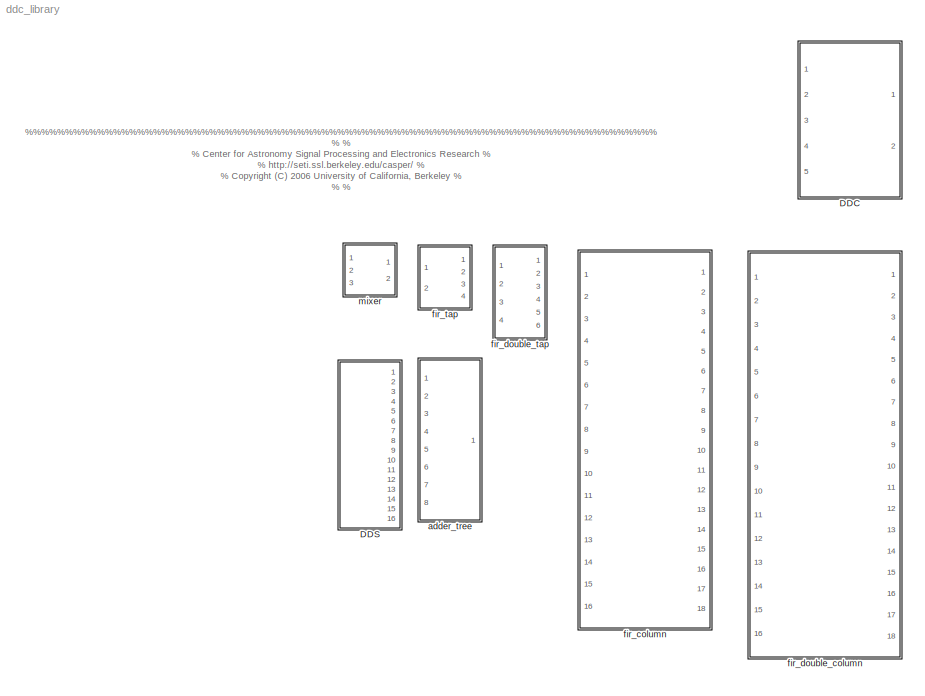
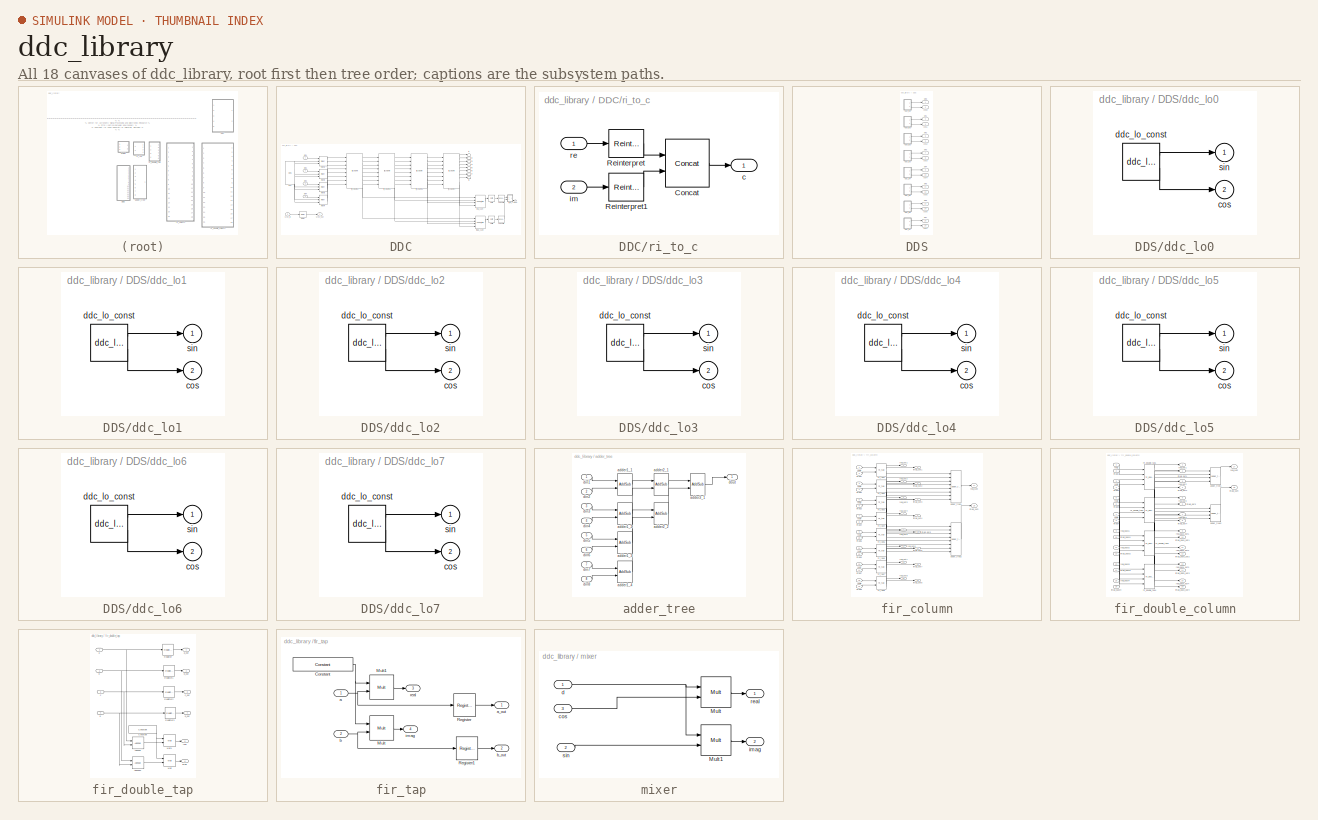
[diagram: thumbnail index - all 18 canvases of the model, root first then tree order]
MODEL ddc_library
KIND library
BLOCK [SubSystem] DDC
  MaskCallbackString = ||||||||
  MaskDescription = Decimating digital downconverter with parameterized LO and LPF coefficients.
  MaskEnableString = on,on,on,on,on,on,on,on,on
  MaskHelp = eval('xlWeb([getenv(''MLIB_ROOT''), ''<path>''])')
  MaskIconFrame = on
  MaskIconOpaque = on
  MaskIconRotate = none
  MaskIconUnits = autoscale
  MaskInitialization = ddc_mask;
  MaskPromptString = Frequency Divisions (M)|LO Frequency (1/M*2pi)|Inputs|LO BitWidth|FIR coefficients|Bit Width Out|Quantization Behavior|Add Latency|Mult Latency
  MaskSelfModifiable = on
  MaskStyleString = edit,edit,edit,edit,edit,edit,popup(Truncate|Round  (unbiased: +/- Inf)|Round  (unbiased: Even Values)),edit,edit
  MaskTabNameString = ,,,,,,,,
  MaskToolTipString = on,on,on,on,on,on,on,on,on
  MaskTunableValueString = on,on,on,on,on,on,on,on,on
  MaskType = DDC
  MaskValueString = 16|3|4|18|[1,zeros(1,15)]|8|Round  (unbiased: +/- Inf)|2|3
  MaskVarAliasString = ,,,,,,,,
  MaskVariables = freq_div=@1;lo_freq=@2;num_inputs=@3;lo_bitwidth=@4;lpfir_coeff=@5;BitWidthOut=@6;quantization=&7;add_latency=@8;mult_latency=@9;
  MaskVisibilityString = on,on,on,on,on,on,on,on,on
  MinAlgLoopOccurrences = off
  Ports = [5, 2]
  RTWSystemCode = Auto
  TreatAsAtomicUnit = off
  UserData = DataTag0
  UserDataPersistent = on
BLOCK [Reference] DDC/Shift  REF=xbsIndex_r3/Shift
  Ports = [1, 1]
  SourceBlock = xbsIndex_r3/Shift
  SourceType = Xilinx Shift Block
  arith_type = Signed  (2's comp)
  bin_pt = 2
  dbl_ovrd = off
  en = off
  explicit_period = off
  latency = 0
  n_bits = 8
  overflow = Wrap
  period = 1
  precision = Full
  quantization = Truncate
  shift_bits = 1
  shift_dir = Left
  show_param = off
  xl_area = [0, 0, 0, 0, 0, 0, 0]
  xl_use_area = off
BLOCK [Reference] DDC/Shift1  REF=xbsIndex_r3/Shift
  Ports = [1, 1]
  SourceBlock = xbsIndex_r3/Shift
  SourceType = Xilinx Shift Block
  arith_type = Signed  (2's comp)
  bin_pt = 2
  dbl_ovrd = off
  en = off
  explicit_period = off
  latency = 0
  n_bits = 8
  overflow = Wrap
  period = 1
  precision = Full
  quantization = Truncate
  shift_bits = 1
  shift_dir = Left
  show_param = off
  xl_area = [0, 0, 0, 0, 0, 0, 0]
  xl_use_area = off
BLOCK [Reference] DDC/convert1  REF=xbsIndex_r3/Convert
  Ports = [1, 1]
  SourceBlock = xbsIndex_r3/Convert
  SourceType = Xilinx Converter Block
  arith_type = Signed  (2's comp)
  bin_pt = BitWidthOut - 1
  dbl_ovrd = off
  explicit_period = on
  inserted_by_tool = off
  latency = add_latency
  n_bits = BitWidthOut
  overflow = Saturate
  period = 1
  pipeline = on
  quantization = Round  (unbiased: +/- Inf)
  show_param = on
  xl_area = [0, 0, 0, 0, 0, 0, 0]
  xl_use_area = off
BLOCK [Reference] DDC/convert2  REF=xbsIndex_r3/Convert
  Ports = [1, 1]
  SourceBlock = xbsIndex_r3/Convert
  SourceType = Xilinx Converter Block
  arith_type = Signed  (2's comp)
  bin_pt = BitWidthOut - 1
  dbl_ovrd = off
  explicit_period = on
  inserted_by_tool = off
  latency = add_latency
  n_bits = BitWidthOut
  overflow = Saturate
  period = 1
  pipeline = on
  quantization = Round  (unbiased: +/- Inf)
  show_param = on
  xl_area = [0, 0, 0, 0, 0, 0, 0]
  xl_use_area = off
BLOCK [Reference] DDC/dds  REF=ddc_library/DDS  (lib defined in mdl_423f3fd48bb0)
  BitWidth = lo_bitwidth
  Ports = [0, 8]
  ShowPortLabels = on
  SourceBlock = ddc_library/DDS
  freq = lo_freq
  freq_div = freq_div
  latency = 2
  num_lo = num_inputs
BLOCK [Reference] DDC/delay  REF=xbsIndex_r3/Delay
  Ports = [1, 1]
  SourceBlock = xbsIndex_r3/Delay
  SourceType = Xilinx Delay Block
  accept_only_valid = off
  dbl_ovrd = off
  en = off
  explicit_period = off
  init_zero = on
  latency = mult_latency*2+ceil(log2(num_inputs))*add_latency+ceil(log2(num_fir_col))*add_latency+add_latency
  period = 1
  reg_retiming = off
  show_param = off
  xl_area = [0, 0, 0, 0, 0, 0, 0]
  xl_use_area = off
BLOCK [Inport] DDC/din1
  IconDisplay = Port number
  LatchInput = off
  Port = 1
BLOCK [Inport] DDC/din2
  IconDisplay = Port number
  LatchInput = off
  Port = 2
BLOCK [Inport] DDC/din3
  IconDisplay = Port number
  LatchInput = off
  Port = 3
BLOCK [Inport] DDC/din4
  IconDisplay = Port number
  LatchInput = off
  Port = 4
BLOCK [Outport] DDC/dout
  BusOutputAsStruct = off
  IconDisplay = Port number
BLOCK [Reference] DDC/fir_column1  REF=ddc_library/fir_column  (lib defined in mdl_423f3fd48bb0)
  Ports = [8, 10]
  ShowPortLabels = on
  SourceBlock = ddc_library/fir_column
  SourceType = fir_column
  add_latency = 1
  coeff = lpfir_coeff(4:-1:1)
  mult_latency = mult_latency
  num_inputs = num_inputs
BLOCK [Reference] DDC/fir_column2  REF=ddc_library/fir_column  (lib defined in mdl_423f3fd48bb0)
  Ports = [8, 10]
  ShowPortLabels = on
  SourceBlock = ddc_library/fir_column
  SourceType = fir_column
  add_latency = 1
  coeff = lpfir_coeff(8:-1:5)
  mult_latency = mult_latency
  num_inputs = num_inputs
BLOCK [Reference] DDC/fir_column3  REF=ddc_library/fir_column  (lib defined in mdl_423f3fd48bb0)
  Ports = [8, 10]
  ShowPortLabels = on
  SourceBlock = ddc_library/fir_column
  SourceType = fir_column
  add_latency = 1
  coeff = lpfir_coeff(12:-1:9)
  mult_latency = mult_latency
  num_inputs = num_inputs
BLOCK [Reference] DDC/fir_column4  REF=ddc_library/fir_column  (lib defined in mdl_423f3fd48bb0)
  Ports = [8, 10]
  ShowPortLabels = on
  SourceBlock = ddc_library/fir_column
  SourceType = fir_column
  add_latency = 1
  coeff = lpfir_coeff(16:-1:13)
  mult_latency = mult_latency
  num_inputs = num_inputs
BLOCK [Reference] DDC/imag_sum  REF=ddc_library/adder_tree  (lib defined in mdl_423f3fd48bb0)
  Ports = [4, 1]
  ShowPortLabels = on
  SourceBlock = ddc_library/adder_tree
  latency = 2
  num_inputs = 4
BLOCK [Reference] DDC/mixer1  REF=ddc_library/mixer  (lib defined in mdl_423f3fd48bb0)
  BitWidth = lo_bitwidth
  Ports = [3, 2]
  ShowPortLabels = on
  SourceBlock = ddc_library/mixer
  latency = mult_latency
BLOCK [Reference] DDC/mixer2  REF=ddc_library/mixer  (lib defined in mdl_423f3fd48bb0)
  BitWidth = lo_bitwidth
  Ports = [3, 2]
  ShowPortLabels = on
  SourceBlock = ddc_library/mixer
  latency = mult_latency
BLOCK [Reference] DDC/mixer3  REF=ddc_library/mixer  (lib defined in mdl_423f3fd48bb0)
  BitWidth = lo_bitwidth
  Ports = [3, 2]
  ShowPortLabels = on
  SourceBlock = ddc_library/mixer
  latency = mult_latency
BLOCK [Reference] DDC/mixer4  REF=ddc_library/mixer  (lib defined in mdl_423f3fd48bb0)
  BitWidth = lo_bitwidth
  Ports = [3, 2]
  ShowPortLabels = on
  SourceBlock = ddc_library/mixer
  latency = mult_latency
BLOCK [Reference] DDC/real_sum  REF=ddc_library/adder_tree  (lib defined in mdl_423f3fd48bb0)
  Ports = [4, 1]
  ShowPortLabels = on
  SourceBlock = ddc_library/adder_tree
  latency = 2
  num_inputs = 4
BLOCK [SubSystem] DDC/ri_to_c
  MinAlgLoopOccurrences = off
  Ports = [2, 1]
  RTWSystemCode = Auto
  TreatAsAtomicUnit = off
BLOCK [Reference] DDC/ri_to_c/Concat  REF=xbsIndex_r3/Concat
  Ports = [2, 1]
  SourceBlock = xbsIndex_r3/Concat
  SourceType = Xilinx Bus Concatenator
  dbl_ovrd = off
  explicit_period = off
  num_inputs = 2
  period = 1
BLOCK [Reference] DDC/ri_to_c/Reinterpret  REF=xbsIndex_r3/Reinterpret
  Ports = [1, 1]
  SourceBlock = xbsIndex_r3/Reinterpret
  SourceType = Xilinx Type Reinterpreting Block
  arith_type = Unsigned
  bin_pt = 0
  force_arith_type = on
  force_bin_pt = on
  force_valid = on
BLOCK [Reference] DDC/ri_to_c/Reinterpret1  REF=xbsIndex_r3/Reinterpret
  Ports = [1, 1]
  SourceBlock = xbsIndex_r3/Reinterpret
  SourceType = Xilinx Type Reinterpreting Block
  arith_type = Unsigned
  bin_pt = 0
  force_arith_type = on
  force_bin_pt = on
  force_valid = on
BLOCK [Outport] DDC/ri_to_c/c
  BusOutputAsStruct = off
  IconDisplay = Port number
BLOCK [Inport] DDC/ri_to_c/im
  IconDisplay = Port number
  LatchInput = off
  Port = 2
BLOCK [Inport] DDC/ri_to_c/re
  IconDisplay = Port number
  LatchInput = off
  Port = 1
BLOCK [Inport] DDC/sync_in
  IconDisplay = Port number
  LatchInput = off
  Port = 5
BLOCK [Outport] DDC/sync_out
  BusOutputAsStruct = off
  IconDisplay = Port number
  Port = 2
BLOCK [Terminator] DDC/t1
BLOCK [Terminator] DDC/t2
BLOCK [Terminator] DDC/t3
BLOCK [Terminator] DDC/t4
BLOCK [Terminator] DDC/t5
BLOCK [Terminator] DDC/t6
BLOCK [Terminator] DDC/t7
BLOCK [Terminator] DDC/t8
BLOCK [SubSystem] DDS
  MaskCallbackString = ||||
  MaskEnableString = on,on,on,on,on
  MaskIconFrame = on
  MaskIconOpaque = on
  MaskIconRotate = none
  MaskIconUnits = autoscale
  MaskInitialization = dds_mask;
  MaskPromptString = Frequency divisions (M)|Frequency (1/M*2pi)|Parallel LOs (N)|BitWidth|Latency
  MaskSelfModifiable = on
  MaskStyleString = edit,edit,edit,edit,edit
  MaskTabNameString = ,,,,
  MaskToolTipString = on,on,on,on,on
  MaskTunableValueString = on,on,on,on,on
  MaskValueString = 8|2|8|18|2
  MaskVarAliasString = ,,,,
  MaskVariables = freq_div=@1;freq=@2;num_lo=@3;BitWidth=@4;latency=@5;
  MaskVisibilityString = on,on,on,on,on
  MinAlgLoopOccurrences = off
  Ports = [0, 16]
  RTWSystemCode = Auto
  TreatAsAtomicUnit = off
BLOCK [Outport] DDS/cos0
  BusOutputAsStruct = off
  IconDisplay = Port number
  Port = 2
BLOCK [Outport] DDS/cos1
  BusOutputAsStruct = off
  IconDisplay = Port number
  Port = 4
BLOCK [Outport] DDS/cos2
  BusOutputAsStruct = off
  IconDisplay = Port number
  Port = 6
BLOCK [Outport] DDS/cos3
  BusOutputAsStruct = off
  IconDisplay = Port number
  Port = 8
BLOCK [Outport] DDS/cos4
  BusOutputAsStruct = off
  IconDisplay = Port number
  Port = 10
BLOCK [Outport] DDS/cos5
  BusOutputAsStruct = off
  IconDisplay = Port number
  Port = 12
BLOCK [Outport] DDS/cos6
  BusOutputAsStruct = off
  IconDisplay = Port number
  Port = 14
BLOCK [Outport] DDS/cos7
  BusOutputAsStruct = off
  IconDisplay = Port number
  Port = 16
BLOCK [SubSystem] DDS/ddc_lo0
  AttributesFormatString = %<BlockChoice>
  BlockChoice = ddc_lo_const
  MemberBlocks = ddc_lo_const,ddc_lo_osc
  MinAlgLoopOccurrences = off
  Ports = [0, 2]
  RTWSystemCode = Auto
  TemplateBlock = ddc_lo_lib/ddc_lo
  TreatAsAtomicUnit = off
BLOCK [Outport] DDS/ddc_lo0/cos
  BusOutputAsStruct = off
  IconDisplay = Port number
  Port = 2
BLOCK [Reference] DDS/ddc_lo0/ddc_lo_const  REF=ddc_lo_lib/ddc_lo_const  (lib defined in mdl_6d54943e769e)
  BitWidth = BitWidth
  Phase = 0
  Ports = [0, 2]
  ShowPortLabels = on
  SourceBlock = ddc_lo_lib/ddc_lo_const
  SourceType = ddc_lo_const
BLOCK [Outport] DDS/ddc_lo0/sin
  BusOutputAsStruct = off
  IconDisplay = Port number
BLOCK [SubSystem] DDS/ddc_lo1
  AttributesFormatString = %<BlockChoice>
  BlockChoice = ddc_lo_const
  MemberBlocks = ddc_lo_const,ddc_lo_osc
  MinAlgLoopOccurrences = off
  Ports = [0, 2]
  RTWSystemCode = Auto
  TemplateBlock = ddc_lo_lib/ddc_lo
  TreatAsAtomicUnit = off
BLOCK [Outport] DDS/ddc_lo1/cos
  BusOutputAsStruct = off
  IconDisplay = Port number
  Port = 2
BLOCK [Reference] DDS/ddc_lo1/ddc_lo_const  REF=ddc_lo_lib/ddc_lo_const  (lib defined in mdl_6d54943e769e)
  BitWidth = BitWidth
  Phase = 1.5708
  Ports = [0, 2]
  ShowPortLabels = on
  SourceBlock = ddc_lo_lib/ddc_lo_const
  SourceType = ddc_lo_const
BLOCK [Outport] DDS/ddc_lo1/sin
  BusOutputAsStruct = off
  IconDisplay = Port number
BLOCK [SubSystem] DDS/ddc_lo2
  AttributesFormatString = %<BlockChoice>
  BlockChoice = ddc_lo_const
  MemberBlocks = ddc_lo_const,ddc_lo_osc
  MinAlgLoopOccurrences = off
  Ports = [0, 2]
  RTWSystemCode = Auto
  TemplateBlock = ddc_lo_lib/ddc_lo
  TreatAsAtomicUnit = off
BLOCK [Outport] DDS/ddc_lo2/cos
  BusOutputAsStruct = off
  IconDisplay = Port number
  Port = 2
BLOCK [Reference] DDS/ddc_lo2/ddc_lo_const  REF=ddc_lo_lib/ddc_lo_const  (lib defined in mdl_6d54943e769e)
  BitWidth = BitWidth
  Phase = 3.1416
  Ports = [0, 2]
  ShowPortLabels = on
  SourceBlock = ddc_lo_lib/ddc_lo_const
  SourceType = ddc_lo_const
BLOCK [Outport] DDS/ddc_lo2/sin
  BusOutputAsStruct = off
  IconDisplay = Port number
BLOCK [SubSystem] DDS/ddc_lo3
  AttributesFormatString = %<BlockChoice>
  BlockChoice = ddc_lo_const
  MemberBlocks = ddc_lo_const,ddc_lo_osc
  MinAlgLoopOccurrences = off
  Ports = [0, 2]
  RTWSystemCode = Auto
  TemplateBlock = ddc_lo_lib/ddc_lo
  TreatAsAtomicUnit = off
BLOCK [Outport] DDS/ddc_lo3/cos
  BusOutputAsStruct = off
  IconDisplay = Port number
  Port = 2
BLOCK [Reference] DDS/ddc_lo3/ddc_lo_const  REF=ddc_lo_lib/ddc_lo_const  (lib defined in mdl_6d54943e769e)
  BitWidth = BitWidth
  Phase = 4.7124
  Ports = [0, 2]
  ShowPortLabels = on
  SourceBlock = ddc_lo_lib/ddc_lo_const
  SourceType = ddc_lo_const
BLOCK [Outport] DDS/ddc_lo3/sin
  BusOutputAsStruct = off
  IconDisplay = Port number
BLOCK [SubSystem] DDS/ddc_lo4
  AttributesFormatString = %<BlockChoice>
  BlockChoice = ddc_lo_const
  MemberBlocks = ddc_lo_const,ddc_lo_osc
  MinAlgLoopOccurrences = off
  Ports = [0, 2]
  RTWSystemCode = Auto
  TemplateBlock = ddc_lo_lib/ddc_lo
  TreatAsAtomicUnit = off
BLOCK [Outport] DDS/ddc_lo4/cos
  BusOutputAsStruct = off
  IconDisplay = Port number
  Port = 2
BLOCK [Reference] DDS/ddc_lo4/ddc_lo_const  REF=ddc_lo_lib/ddc_lo_const  (lib defined in mdl_6d54943e769e)
  BitWidth = BitWidth
  Phase = 6.2832
  Ports = [0, 2]
  ShowPortLabels = on
  SourceBlock = ddc_lo_lib/ddc_lo_const
  SourceType = ddc_lo_const
BLOCK [Outport] DDS/ddc_lo4/sin
  BusOutputAsStruct = off
  IconDisplay = Port number
BLOCK [SubSystem] DDS/ddc_lo5
  AttributesFormatString = %<BlockChoice>
  BlockChoice = ddc_lo_const
  MemberBlocks = ddc_lo_const,ddc_lo_osc
  MinAlgLoopOccurrences = off
  Ports = [0, 2]
  RTWSystemCode = Auto
  TemplateBlock = ddc_lo_lib/ddc_lo
  TreatAsAtomicUnit = off
BLOCK [Outport] DDS/ddc_lo5/cos
  BusOutputAsStruct = off
  IconDisplay = Port number
  Port = 2
BLOCK [Reference] DDS/ddc_lo5/ddc_lo_const  REF=ddc_lo_lib/ddc_lo_const  (lib defined in mdl_6d54943e769e)
  BitWidth = BitWidth
  Phase = 7.854
  Ports = [0, 2]
  ShowPortLabels = on
  SourceBlock = ddc_lo_lib/ddc_lo_const
  SourceType = ddc_lo_const
BLOCK [Outport] DDS/ddc_lo5/sin
  BusOutputAsStruct = off
  IconDisplay = Port number
BLOCK [SubSystem] DDS/ddc_lo6
  AttributesFormatString = %<BlockChoice>
  BlockChoice = ddc_lo_const
  MemberBlocks = ddc_lo_const,ddc_lo_osc
  MinAlgLoopOccurrences = off
  Ports = [0, 2]
  RTWSystemCode = Auto
  TemplateBlock = ddc_lo_lib/ddc_lo
  TreatAsAtomicUnit = off
BLOCK [Outport] DDS/ddc_lo6/cos
  BusOutputAsStruct = off
  IconDisplay = Port number
  Port = 2
BLOCK [Reference] DDS/ddc_lo6/ddc_lo_const  REF=ddc_lo_lib/ddc_lo_const  (lib defined in mdl_6d54943e769e)
  BitWidth = BitWidth
  Phase = 9.4248
  Ports = [0, 2]
  ShowPortLabels = on
  SourceBlock = ddc_lo_lib/ddc_lo_const
  SourceType = ddc_lo_const
BLOCK [Outport] DDS/ddc_lo6/sin
  BusOutputAsStruct = off
  IconDisplay = Port number
BLOCK [SubSystem] DDS/ddc_lo7
  AttributesFormatString = %<BlockChoice>
  BlockChoice = ddc_lo_const
  MemberBlocks = ddc_lo_const,ddc_lo_osc
  MinAlgLoopOccurrences = off
  Ports = [0, 2]
  RTWSystemCode = Auto
  TemplateBlock = ddc_lo_lib/ddc_lo
  TreatAsAtomicUnit = off
BLOCK [Outport] DDS/ddc_lo7/cos
  BusOutputAsStruct = off
  IconDisplay = Port number
  Port = 2
BLOCK [Reference] DDS/ddc_lo7/ddc_lo_const  REF=ddc_lo_lib/ddc_lo_const  (lib defined in mdl_6d54943e769e)
  BitWidth = BitWidth
  Phase = 10.9956
  Ports = [0, 2]
  ShowPortLabels = on
  SourceBlock = ddc_lo_lib/ddc_lo_const
  SourceType = ddc_lo_const
BLOCK [Outport] DDS/ddc_lo7/sin
  BusOutputAsStruct = off
  IconDisplay = Port number
BLOCK [Outport] DDS/sin0
  BusOutputAsStruct = off
  IconDisplay = Port number
BLOCK [Outport] DDS/sin1
  BusOutputAsStruct = off
  IconDisplay = Port number
  Port = 3
BLOCK [Outport] DDS/sin2
  BusOutputAsStruct = off
  IconDisplay = Port number
  Port = 5
BLOCK [Outport] DDS/sin3
  BusOutputAsStruct = off
  IconDisplay = Port number
  Port = 7
BLOCK [Outport] DDS/sin4
  BusOutputAsStruct = off
  IconDisplay = Port number
  Port = 9
BLOCK [Outport] DDS/sin5
  BusOutputAsStruct = off
  IconDisplay = Port number
  Port = 11
BLOCK [Outport] DDS/sin6
  BusOutputAsStruct = off
  IconDisplay = Port number
  Port = 13
BLOCK [Outport] DDS/sin7
  BusOutputAsStruct = off
  IconDisplay = Port number
  Port = 15
BLOCK [SubSystem] adder_tree
  MaskCallbackString = |
  MaskEnableString = on,on
  MaskIconFrame = on
  MaskIconOpaque = on
  MaskIconRotate = none
  MaskIconUnits = autoscale
  MaskInitialization = adder_tree_mask;
  MaskPromptString = Inputs|Latency per adder tree
  MaskSelfModifiable = on
  MaskStyleString = edit,edit
  MaskTabNameString = ,
  MaskToolTipString = on,on
  MaskTunableValueString = on,on
  MaskValueString = 8|2
  MaskVarAliasString = ,
  MaskVariables = num_inputs=@1;latency=@2;
  MaskVisibilityString = on,on
  MinAlgLoopOccurrences = off
  Ports = [8, 1]
  RTWSystemCode = Auto
  TreatAsAtomicUnit = off
BLOCK [Reference] adder_tree/adder1_1  REF=xbsIndex_r3/AddSub
  Ports = [2, 1]
  SourceBlock = xbsIndex_r3/AddSub
  SourceType = Xilinx Adder/Subtractor
  arith_type = Unsigned
  bin_pt = 2
  dbl_ovrd = off
  en = off
  explicit_period = off
  gen_core = off
  latency = latency
  mode = Addition
  n_bits = 8
  overflow = Wrap
  period = 1
  pipeline = on
  precision = Full
  quantization = Truncate
  show_param = off
  use_carryin = off
  use_carryout = off
  use_core = on
  use_rpm = on
  xl_area = [0, 0, 0, 0, 0, 0, 0]
  xl_use_area = off
BLOCK [Reference] adder_tree/adder1_2  REF=xbsIndex_r3/AddSub
  Ports = [2, 1]
  SourceBlock = xbsIndex_r3/AddSub
  SourceType = Xilinx Adder/Subtractor
  arith_type = Unsigned
  bin_pt = 2
  dbl_ovrd = off
  en = off
  explicit_period = off
  gen_core = off
  latency = latency
  mode = Addition
  n_bits = 8
  overflow = Wrap
  period = 1
  pipeline = on
  precision = Full
  quantization = Truncate
  show_param = off
  use_carryin = off
  use_carryout = off
  use_core = on
  use_rpm = on
  xl_area = [0, 0, 0, 0, 0, 0, 0]
  xl_use_area = off
BLOCK [Reference] adder_tree/adder1_3  REF=xbsIndex_r3/AddSub
  Ports = [2, 1]
  SourceBlock = xbsIndex_r3/AddSub
  SourceType = Xilinx Adder/Subtractor
  arith_type = Unsigned
  bin_pt = 2
  dbl_ovrd = off
  en = off
  explicit_period = off
  gen_core = off
  latency = latency
  mode = Addition
  n_bits = 8
  overflow = Wrap
  period = 1
  pipeline = on
  precision = Full
  quantization = Truncate
  show_param = off
  use_carryin = off
  use_carryout = off
  use_core = on
  use_rpm = on
  xl_area = [0, 0, 0, 0, 0, 0, 0]
  xl_use_area = off
BLOCK [Reference] adder_tree/adder1_4  REF=xbsIndex_r3/AddSub
  Ports = [2, 1]
  SourceBlock = xbsIndex_r3/AddSub
  SourceType = Xilinx Adder/Subtractor
  arith_type = Unsigned
  bin_pt = 2
  dbl_ovrd = off
  en = off
  explicit_period = off
  gen_core = off
  latency = latency
  mode = Addition
  n_bits = 8
  overflow = Wrap
  period = 1
  pipeline = on
  precision = Full
  quantization = Truncate
  show_param = off
  use_carryin = off
  use_carryout = off
  use_core = on
  use_rpm = on
  xl_area = [0, 0, 0, 0, 0, 0, 0]
  xl_use_area = off
BLOCK [Reference] adder_tree/adder2_1  REF=xbsIndex_r3/AddSub
  Ports = [2, 1]
  SourceBlock = xbsIndex_r3/AddSub
  SourceType = Xilinx Adder/Subtractor
  arith_type = Unsigned
  bin_pt = 2
  dbl_ovrd = off
  en = off
  explicit_period = off
  gen_core = off
  latency = latency
  mode = Addition
  n_bits = 8
  overflow = Wrap
  period = 1
  pipeline = on
  precision = Full
  quantization = Truncate
  show_param = off
  use_carryin = off
  use_carryout = off
  use_core = on
  use_rpm = on
  xl_area = [0, 0, 0, 0, 0, 0, 0]
  xl_use_area = off
BLOCK [Reference] adder_tree/adder2_2  REF=xbsIndex_r3/AddSub
  Ports = [2, 1]
  SourceBlock = xbsIndex_r3/AddSub
  SourceType = Xilinx Adder/Subtractor
  arith_type = Unsigned
  bin_pt = 2
  dbl_ovrd = off
  en = off
  explicit_period = off
  gen_core = off
  latency = latency
  mode = Addition
  n_bits = 8
  overflow = Wrap
  period = 1
  pipeline = on
  precision = Full
  quantization = Truncate
  show_param = off
  use_carryin = off
  use_carryout = off
  use_core = on
  use_rpm = on
  xl_area = [0, 0, 0, 0, 0, 0, 0]
  xl_use_area = off
BLOCK [Reference] adder_tree/adder3_1  REF=xbsIndex_r3/AddSub
  Ports = [2, 1]
  SourceBlock = xbsIndex_r3/AddSub
  SourceType = Xilinx Adder/Subtractor
  arith_type = Unsigned
  bin_pt = 2
  dbl_ovrd = off
  en = off
  explicit_period = off
  gen_core = off
  latency = latency
  mode = Addition
  n_bits = 8
  overflow = Wrap
  period = 1
  pipeline = on
  precision = Full
  quantization = Truncate
  show_param = off
  use_carryin = off
  use_carryout = off
  use_core = on
  use_rpm = on
  xl_area = [0, 0, 0, 0, 0, 0, 0]
  xl_use_area = off
BLOCK [Inport] adder_tree/din1
  IconDisplay = Port number
  LatchInput = off
  Port = 1
BLOCK [Inport] adder_tree/din2
  IconDisplay = Port number
  LatchInput = off
  Port = 2
BLOCK [Inport] adder_tree/din3
  IconDisplay = Port number
  LatchInput = off
  Port = 3
BLOCK [Inport] adder_tree/din4
  IconDisplay = Port number
  LatchInput = off
  Port = 4
BLOCK [Inport] adder_tree/din5
  IconDisplay = Port number
  LatchInput = off
  Port = 5
BLOCK [Inport] adder_tree/din6
  IconDisplay = Port number
  LatchInput = off
  Port = 6
BLOCK [Inport] adder_tree/din7
  IconDisplay = Port number
  LatchInput = off
  Port = 7
BLOCK [Inport] adder_tree/din8
  IconDisplay = Port number
  LatchInput = off
  Port = 8
BLOCK [Outport] adder_tree/dout
  BusOutputAsStruct = off
  IconDisplay = Port number
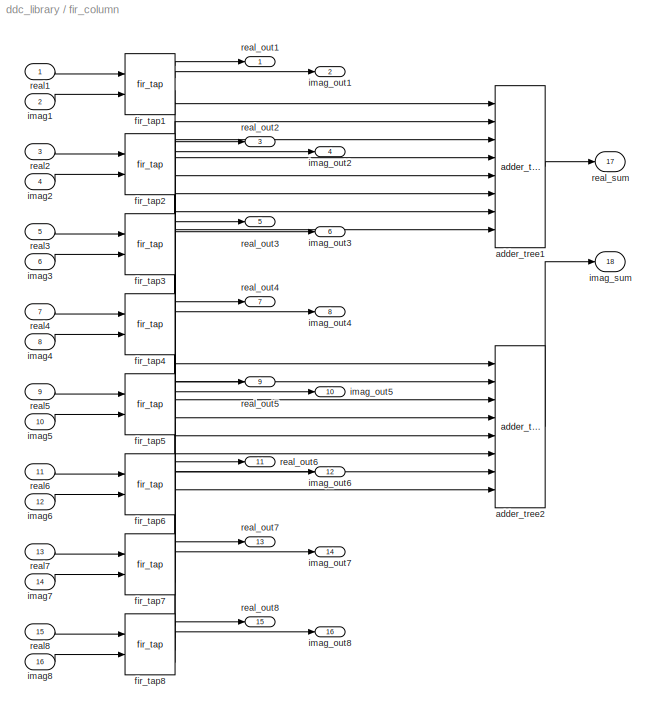
BLOCK [SubSystem] fir_column
  MaskCallbackString = |||
  MaskEnableString = on,on,on,on
  MaskIconFrame = on
  MaskIconOpaque = on
  MaskIconRotate = none
  MaskIconUnits = autoscale
  MaskInitialization = fir_column_mask;
  MaskPromptString = Inputs|Coefficients|Mult Latency|Add latency
  MaskSelfModifiable = on
  MaskStyleString = edit,edit,edit,edit
  MaskTabNameString = ,,,
  MaskToolTipString = on,on,on,on
  MaskTunableValueString = on,on,on,on
  MaskType = fir_column
  MaskValueString = 8|rand(128)|2|1
  MaskVarAliasString = ,,,
  MaskVariables = num_inputs=@1;coeff=@2;mult_latency=@3;add_latency=@4;
  MaskVisibilityString = on,on,on,on
  MinAlgLoopOccurrences = off
  Ports = [16, 18]
  RTWSystemCode = Auto
  TreatAsAtomicUnit = off
BLOCK [Reference] fir_column/adder_tree1  REF=ddc_library/adder_tree  (lib defined in mdl_423f3fd48bb0)
  Ports = [8, 1]
  ShowPortLabels = on
  SourceBlock = ddc_library/adder_tree
  SourceType = Unknown
  latency = add_latency
  num_inputs = num_inputs
BLOCK [Reference] fir_column/adder_tree2  REF=ddc_library/adder_tree  (lib defined in mdl_423f3fd48bb0)
  Ports = [8, 1]
  ShowPortLabels = on
  SourceBlock = ddc_library/adder_tree
  SourceType = Unknown
  latency = add_latency
  num_inputs = num_inputs
BLOCK [Reference] fir_column/fir_tap1  REF=ddc_library/fir_tap  (lib defined in mdl_423f3fd48bb0)
  Ports = [2, 4]
  ShowPortLabels = on
  SourceBlock = ddc_library/fir_tap
  SourceType = fir_tap
  factor = coeff(1)
  latency = mult_latency
BLOCK [Reference] fir_column/fir_tap2  REF=ddc_library/fir_tap  (lib defined in mdl_423f3fd48bb0)
  Ports = [2, 4]
  ShowPortLabels = on
  SourceBlock = ddc_library/fir_tap
  SourceType = fir_tap
  factor = coeff(2)
  latency = mult_latency
BLOCK [Reference] fir_column/fir_tap3  REF=ddc_library/fir_tap  (lib defined in mdl_423f3fd48bb0)
  Ports = [2, 4]
  ShowPortLabels = on
  SourceBlock = ddc_library/fir_tap
  SourceType = fir_tap
  factor = coeff(3)
  latency = mult_latency
BLOCK [Reference] fir_column/fir_tap4  REF=ddc_library/fir_tap  (lib defined in mdl_423f3fd48bb0)
  Ports = [2, 4]
  ShowPortLabels = on
  SourceBlock = ddc_library/fir_tap
  SourceType = fir_tap
  factor = coeff(4)
  latency = mult_latency
BLOCK [Reference] fir_column/fir_tap5  REF=ddc_library/fir_tap  (lib defined in mdl_423f3fd48bb0)
  Ports = [2, 4]
  ShowPortLabels = on
  SourceBlock = ddc_library/fir_tap
  SourceType = fir_tap
  factor = coeff(5)
  latency = mult_latency
BLOCK [Reference] fir_column/fir_tap6  REF=ddc_library/fir_tap  (lib defined in mdl_423f3fd48bb0)
  Ports = [2, 4]
  ShowPortLabels = on
  SourceBlock = ddc_library/fir_tap
  SourceType = fir_tap
  factor = coeff(6)
  latency = mult_latency
BLOCK [Reference] fir_column/fir_tap7  REF=ddc_library/fir_tap  (lib defined in mdl_423f3fd48bb0)
  Ports = [2, 4]
  ShowPortLabels = on
  SourceBlock = ddc_library/fir_tap
  SourceType = fir_tap
  factor = coeff(7)
  latency = mult_latency
BLOCK [Reference] fir_column/fir_tap8  REF=ddc_library/fir_tap  (lib defined in mdl_423f3fd48bb0)
  Ports = [2, 4]
  ShowPortLabels = on
  SourceBlock = ddc_library/fir_tap
  SourceType = fir_tap
  factor = coeff(8)
  latency = mult_latency
BLOCK [Inport] fir_column/imag1
  IconDisplay = Port number
  LatchInput = off
  Port = 2
BLOCK [Inport] fir_column/imag2
  IconDisplay = Port number
  LatchInput = off
  Port = 4
BLOCK [Inport] fir_column/imag3
  IconDisplay = Port number
  LatchInput = off
  Port = 6
BLOCK [Inport] fir_column/imag4
  IconDisplay = Port number
  LatchInput = off
  Port = 8
BLOCK [Inport] fir_column/imag5
  IconDisplay = Port number
  LatchInput = off
  Port = 10
BLOCK [Inport] fir_column/imag6
  IconDisplay = Port number
  LatchInput = off
  Port = 12
BLOCK [Inport] fir_column/imag7
  IconDisplay = Port number
  LatchInput = off
  Port = 14
BLOCK [Inport] fir_column/imag8
  IconDisplay = Port number
  LatchInput = off
  Port = 16
BLOCK [Outport] fir_column/imag_out1
  BusOutputAsStruct = off
  IconDisplay = Port number
  Port = 2
BLOCK [Outport] fir_column/imag_out2
  BusOutputAsStruct = off
  IconDisplay = Port number
  Port = 4
BLOCK [Outport] fir_column/imag_out3
  BusOutputAsStruct = off
  IconDisplay = Port number
  Port = 6
BLOCK [Outport] fir_column/imag_out4
  BusOutputAsStruct = off
  IconDisplay = Port number
  Port = 8
BLOCK [Outport] fir_column/imag_out5
  BusOutputAsStruct = off
  IconDisplay = Port number
  Port = 10
BLOCK [Outport] fir_column/imag_out6
  BusOutputAsStruct = off
  IconDisplay = Port number
  Port = 12
BLOCK [Outport] fir_column/imag_out7
  BusOutputAsStruct = off
  IconDisplay = Port number
  Port = 14
BLOCK [Outport] fir_column/imag_out8
  BusOutputAsStruct = off
  IconDisplay = Port number
  Port = 16
BLOCK [Outport] fir_column/imag_sum
  BusOutputAsStruct = off
  IconDisplay = Port number
  Port = 18
BLOCK [Inport] fir_column/real1
  IconDisplay = Port number
  LatchInput = off
  Port = 1
BLOCK [Inport] fir_column/real2
  IconDisplay = Port number
  LatchInput = off
  Port = 3
BLOCK [Inport] fir_column/real3
  IconDisplay = Port number
  LatchInput = off
  Port = 5
BLOCK [Inport] fir_column/real4
  IconDisplay = Port number
  LatchInput = off
  Port = 7
BLOCK [Inport] fir_column/real5
  IconDisplay = Port number
  LatchInput = off
  Port = 9
BLOCK [Inport] fir_column/real6
  IconDisplay = Port number
  LatchInput = off
  Port = 11
BLOCK [Inport] fir_column/real7
  IconDisplay = Port number
  LatchInput = off
  Port = 13
BLOCK [Inport] fir_column/real8
  IconDisplay = Port number
  LatchInput = off
  Port = 15
BLOCK [Outport] fir_column/real_out1
  BusOutputAsStruct = off
  IconDisplay = Port number
BLOCK [Outport] fir_column/real_out2
  BusOutputAsStruct = off
  IconDisplay = Port number
  Port = 3
BLOCK [Outport] fir_column/real_out3
  BusOutputAsStruct = off
  IconDisplay = Port number
  Port = 5
BLOCK [Outport] fir_column/real_out4
  BusOutputAsStruct = off
  IconDisplay = Port number
  Port = 7
BLOCK [Outport] fir_column/real_out5
  BusOutputAsStruct = off
  IconDisplay = Port number
  Port = 9
BLOCK [Outport] fir_column/real_out6
  BusOutputAsStruct = off
  IconDisplay = Port number
  Port = 11
BLOCK [Outport] fir_column/real_out7
  BusOutputAsStruct = off
  IconDisplay = Port number
  Port = 13
BLOCK [Outport] fir_column/real_out8
  BusOutputAsStruct = off
  IconDisplay = Port number
  Port = 15
BLOCK [Outport] fir_column/real_sum
  BusOutputAsStruct = off
  IconDisplay = Port number
  Port = 17
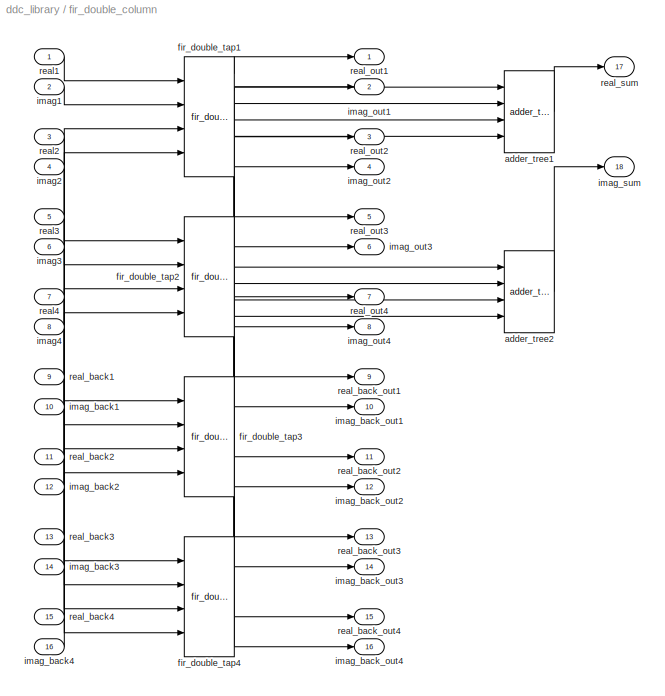
BLOCK [SubSystem] fir_double_column
  MaskCallbackString = |||
  MaskEnableString = on,on,on,on
  MaskIconFrame = on
  MaskIconOpaque = on
  MaskIconRotate = none
  MaskIconUnits = autoscale
  MaskInitialization = fir_double_column_mask;
  MaskPromptString = Inputs|Coefficients|Mult Latency|Add latency
  MaskSelfModifiable = on
  MaskStyleString = edit,edit,edit,edit
  MaskTabNameString = ,,,
  MaskToolTipString = on,on,on,on
  MaskTunableValueString = on,on,on,on
  MaskType = fir_double_column
  MaskValueString = 4|rand(8)|3|2
  MaskVarAliasString = ,,,
  MaskVariables = num_inputs=@1;coeff=@2;mult_latency=@3;add_latency=@4;
  MaskVisibilityString = on,on,on,on
  MinAlgLoopOccurrences = off
  Ports = [16, 18]
  RTWSystemCode = Auto
  TreatAsAtomicUnit = off
BLOCK [Reference] fir_double_column/adder_tree1  REF=ddc_library/adder_tree  (lib defined in mdl_423f3fd48bb0)
  Ports = [4, 1]
  ShowPortLabels = on
  SourceBlock = ddc_library/adder_tree
  SourceType = Unknown
  latency = add_latency
  num_inputs = num_inputs
BLOCK [Reference] fir_double_column/adder_tree2  REF=ddc_library/adder_tree  (lib defined in mdl_423f3fd48bb0)
  Ports = [4, 1]
  ShowPortLabels = on
  SourceBlock = ddc_library/adder_tree
  SourceType = Unknown
  latency = add_latency
  num_inputs = num_inputs
BLOCK [Reference] fir_double_column/fir_double_tap1  REF=ddc_library/fir_double_tap  (lib defined in mdl_423f3fd48bb0)
  Ports = [4, 6]
  ShowPortLabels = on
  SourceBlock = ddc_library/fir_double_tap
  SourceType = fir_double_tap
  add_latency = add_latency
  factor = coeff(1)
  mult_latency = mult_latency
BLOCK [Reference] fir_double_column/fir_double_tap2  REF=ddc_library/fir_double_tap  (lib defined in mdl_423f3fd48bb0)
  Ports = [4, 6]
  ShowPortLabels = on
  SourceBlock = ddc_library/fir_double_tap
  SourceType = fir_double_tap
  add_latency = add_latency
  factor = coeff(2)
  mult_latency = mult_latency
BLOCK [Reference] fir_double_column/fir_double_tap3  REF=ddc_library/fir_double_tap  (lib defined in mdl_423f3fd48bb0)
  Ports = [4, 6]
  ShowPortLabels = on
  SourceBlock = ddc_library/fir_double_tap
  SourceType = fir_double_tap
  add_latency = add_latency
  factor = coeff(3)
  mult_latency = mult_latency
BLOCK [Reference] fir_double_column/fir_double_tap4  REF=ddc_library/fir_double_tap  (lib defined in mdl_423f3fd48bb0)
  Ports = [4, 6]
  ShowPortLabels = on
  SourceBlock = ddc_library/fir_double_tap
  SourceType = fir_double_tap
  add_latency = add_latency
  factor = coeff(4)
  mult_latency = mult_latency
BLOCK [Inport] fir_double_column/imag1
  IconDisplay = Port number
  LatchInput = off
  Port = 2
BLOCK [Inport] fir_double_column/imag2
  IconDisplay = Port number
  LatchInput = off
  Port = 4
BLOCK [Inport] fir_double_column/imag3
  IconDisplay = Port number
  LatchInput = off
  Port = 6
BLOCK [Inport] fir_double_column/imag4
  IconDisplay = Port number
  LatchInput = off
  Port = 8
BLOCK [Inport] fir_double_column/imag_back1
  IconDisplay = Port number
  LatchInput = off
  Port = 10
BLOCK [Inport] fir_double_column/imag_back2
  IconDisplay = Port number
  LatchInput = off
  Port = 12
BLOCK [Inport] fir_double_column/imag_back3
  IconDisplay = Port number
  LatchInput = off
  Port = 14
BLOCK [Inport] fir_double_column/imag_back4
  IconDisplay = Port number
  LatchInput = off
  Port = 16
BLOCK [Outport] fir_double_column/imag_back_out1
  BusOutputAsStruct = off
  IconDisplay = Port number
  Port = 10
BLOCK [Outport] fir_double_column/imag_back_out2
  BusOutputAsStruct = off
  IconDisplay = Port number
  Port = 12
BLOCK [Outport] fir_double_column/imag_back_out3
  BusOutputAsStruct = off
  IconDisplay = Port number
  Port = 14
BLOCK [Outport] fir_double_column/imag_back_out4
  BusOutputAsStruct = off
  IconDisplay = Port number
  Port = 16
BLOCK [Outport] fir_double_column/imag_out1
  BusOutputAsStruct = off
  IconDisplay = Port number
  Port = 2
BLOCK [Outport] fir_double_column/imag_out2
  BusOutputAsStruct = off
  IconDisplay = Port number
  Port = 4
BLOCK [Outport] fir_double_column/imag_out3
  BusOutputAsStruct = off
  IconDisplay = Port number
  Port = 6
BLOCK [Outport] fir_double_column/imag_out4
  BusOutputAsStruct = off
  IconDisplay = Port number
  Port = 8
BLOCK [Outport] fir_double_column/imag_sum
  BusOutputAsStruct = off
  IconDisplay = Port number
  Port = 18
BLOCK [Inport] fir_double_column/real1
  IconDisplay = Port number
  LatchInput = off
  Port = 1
BLOCK [Inport] fir_double_column/real2
  IconDisplay = Port number
  LatchInput = off
  Port = 3
BLOCK [Inport] fir_double_column/real3
  IconDisplay = Port number
  LatchInput = off
  Port = 5
BLOCK [Inport] fir_double_column/real4
  IconDisplay = Port number
  LatchInput = off
  Port = 7
BLOCK [Inport] fir_double_column/real_back1
  IconDisplay = Port number
  LatchInput = off
  Port = 9
BLOCK [Inport] fir_double_column/real_back2
  IconDisplay = Port number
  LatchInput = off
  Port = 11
BLOCK [Inport] fir_double_column/real_back3
  IconDisplay = Port number
  LatchInput = off
  Port = 13
BLOCK [Inport] fir_double_column/real_back4
  IconDisplay = Port number
  LatchInput = off
  Port = 15
BLOCK [Outport] fir_double_column/real_back_out1
  BusOutputAsStruct = off
  IconDisplay = Port number
  Port = 9
BLOCK [Outport] fir_double_column/real_back_out2
  BusOutputAsStruct = off
  IconDisplay = Port number
  Port = 11
BLOCK [Outport] fir_double_column/real_back_out3
  BusOutputAsStruct = off
  IconDisplay = Port number
  Port = 13
BLOCK [Outport] fir_double_column/real_back_out4
  BusOutputAsStruct = off
  IconDisplay = Port number
  Port = 15
BLOCK [Outport] fir_double_column/real_out1
  BusOutputAsStruct = off
  IconDisplay = Port number
BLOCK [Outport] fir_double_column/real_out2
  BusOutputAsStruct = off
  IconDisplay = Port number
  Port = 3
BLOCK [Outport] fir_double_column/real_out3
  BusOutputAsStruct = off
  IconDisplay = Port number
  Port = 5
BLOCK [Outport] fir_double_column/real_out4
  BusOutputAsStruct = off
  IconDisplay = Port number
  Port = 7
BLOCK [Outport] fir_double_column/real_sum
  BusOutputAsStruct = off
  IconDisplay = Port number
  Port = 17
BLOCK [SubSystem] fir_double_tap
  MaskCallbackString = ||
  MaskEnableString = on,on,on
  MaskIconFrame = on
  MaskIconOpaque = on
  MaskIconRotate = none
  MaskIconUnits = autoscale
  MaskPromptString = factor|Mult latency|Add latency
  MaskSelfModifiable = on
  MaskStyleString = edit,edit,edit
  MaskTabNameString = ,,
  MaskToolTipString = on,on,on
  MaskTunableValueString = on,on,on
  MaskType = fir_double_tap
  MaskValueString = 0.073384|3|2
  MaskVarAliasString = ,,
  MaskVariables = factor=@1;mult_latency=@2;add_latency=@3;
  MaskVisibilityString = on,on,on
  MinAlgLoopOccurrences = off
  Ports = [4, 6]
  RTWSystemCode = Auto
  TreatAsAtomicUnit = off
BLOCK [Reference] fir_double_tap/AddSub  REF=xbsIndex_r3/AddSub
  Ports = [2, 1]
  SourceBlock = xbsIndex_r3/AddSub
  SourceType = Xilinx Adder/Subtractor
  arith_type = Signed  (2's comp)
  bin_pt = 16
  dbl_ovrd = off
  en = off
  explicit_period = on
  gen_core = off
  latency = add_latency
  mode = Addition
  n_bits = 18
  overflow = Wrap
  period = 1
  pipeline = off
  precision = User Defined
  quantization = Truncate
  show_param = off
  use_carryin = off
  use_carryout = off
  use_core = on
  use_rpm = on
  xl_area = [0, 0, 0, 0, 0, 0, 0]
  xl_use_area = off
BLOCK [Reference] fir_double_tap/AddSub1  REF=xbsIndex_r3/AddSub
  Ports = [2, 1]
  SourceBlock = xbsIndex_r3/AddSub
  SourceType = Xilinx Adder/Subtractor
  arith_type = Signed  (2's comp)
  bin_pt = 16
  dbl_ovrd = off
  en = off
  explicit_period = on
  gen_core = off
  latency = add_latency
  mode = Addition
  n_bits = 18
  overflow = Wrap
  period = 1
  pipeline = off
  precision = User Defined
  quantization = Truncate
  show_param = off
  use_carryin = off
  use_carryout = off
  use_core = on
  use_rpm = on
  xl_area = [0, 0, 0, 0, 0, 0, 0]
  xl_use_area = off
BLOCK [Reference] fir_double_tap/Constant  REF=xbsIndex_r3/Constant
  Ports = [0, 1]
  SourceBlock = xbsIndex_r3/Constant
  SourceType = Xilinx Constant Block
  arith_type = Signed  (2's comp)
  bin_pt = 17
  carry = CIN
  const = factor
  dbl_ovrd = off
  equ = P=C
  explicit_period = on
  inp1 = P
  inp2 = PCIN>>17
  iostate = 0
  n_bits = 18
  opr = +
  opselect = C
  period = 1
BLOCK [Reference] fir_double_tap/Mult  REF=xbsIndex_r3/Mult
  Ports = [2, 1]
  SourceBlock = xbsIndex_r3/Mult
  SourceType = Xilinx Multiplier
  arith_type = Signed  (2's comp)
  bin_pt = 17
  dbl_ovrd = off
  en = off
  explicit_period = off
  gen_core = off
  latency = mult_latency
  mult_type = Parallel
  n_bits = 18
  overflow = Wrap
  oversample = 2
  period = 1
  pipeline = on
  placement_style = Rectangular Shape
  precision = Full
  quantization = Truncate
  show_param = on
  use_embedded = on
  use_rpm = off
  xl_area = [0, 0, 0, 0, 0, 0, 0]
  xl_use_area = off
BLOCK [Reference] fir_double_tap/Mult1  REF=xbsIndex_r3/Mult
  Ports = [2, 1]
  SourceBlock = xbsIndex_r3/Mult
  SourceType = Xilinx Multiplier
  arith_type = Signed  (2's comp)
  bin_pt = 17
  dbl_ovrd = off
  en = off
  explicit_period = off
  gen_core = off
  latency = mult_latency
  mult_type = Parallel
  n_bits = 18
  overflow = Wrap
  oversample = 2
  period = 1
  pipeline = on
  placement_style = Rectangular Shape
  precision = Full
  quantization = Truncate
  show_param = on
  use_embedded = on
  use_rpm = off
  xl_area = [0, 0, 0, 0, 0, 0, 0]
  xl_use_area = off
BLOCK [Reference] fir_double_tap/Register  REF=xbsIndex_r3/Register
  Ports = [1, 1]
  SourceBlock = xbsIndex_r3/Register
  SourceType = Xilinx Register Block
  dbl_ovrd = off
  en = off
  explicit_period = on
  init = 0
  out_en = off
  period = 1
  reg_only_valid = off
  rst = off
  show_param = off
  xl_area = [0, 0, 0, 0, 0, 0, 0]
  xl_use_area = off
BLOCK [Reference] fir_double_tap/Register1  REF=xbsIndex_r3/Register
  Ports = [1, 1]
  SourceBlock = xbsIndex_r3/Register
  SourceType = Xilinx Register Block
  dbl_ovrd = off
  en = off
  explicit_period = on
  init = 0
  out_en = off
  period = 1
  reg_only_valid = off
  rst = off
  show_param = off
  xl_area = [0, 0, 0, 0, 0, 0, 0]
  xl_use_area = off
BLOCK [Reference] fir_double_tap/Register2  REF=xbsIndex_r3/Register
  Ports = [1, 1]
  SourceBlock = xbsIndex_r3/Register
  SourceType = Xilinx Register Block
  dbl_ovrd = off
  en = off
  explicit_period = on
  init = 0
  out_en = off
  period = 1
  reg_only_valid = off
  rst = off
  show_param = off
  xl_area = [0, 0, 0, 0, 0, 0, 0]
  xl_use_area = off
BLOCK [Reference] fir_double_tap/Register3  REF=xbsIndex_r3/Register
  Ports = [1, 1]
  SourceBlock = xbsIndex_r3/Register
  SourceType = Xilinx Register Block
  dbl_ovrd = off
  en = off
  explicit_period = on
  init = 0
  out_en = off
  period = 1
  reg_only_valid = off
  rst = off
  show_param = off
  xl_area = [0, 0, 0, 0, 0, 0, 0]
  xl_use_area = off
BLOCK [Inport] fir_double_tap/a
  IconDisplay = Port number
  LatchInput = off
  Port = 1
BLOCK [Outport] fir_double_tap/a_out
  BusOutputAsStruct = off
  IconDisplay = Port number
BLOCK [Inport] fir_double_tap/b
  IconDisplay = Port number
  LatchInput = off
  Port = 2
BLOCK [Outport] fir_double_tap/b_out
  BusOutputAsStruct = off
  IconDisplay = Port number
  Port = 2
BLOCK [Inport] fir_double_tap/c
  IconDisplay = Port number
  LatchInput = off
  Port = 3
BLOCK [Outport] fir_double_tap/c_out
  BusOutputAsStruct = off
  IconDisplay = Port number
  Port = 3
BLOCK [Inport] fir_double_tap/d
  IconDisplay = Port number
  LatchInput = off
  Port = 4
BLOCK [Outport] fir_double_tap/d_out
  BusOutputAsStruct = off
  IconDisplay = Port number
  Port = 4
BLOCK [Outport] fir_double_tap/imag
  BusOutputAsStruct = off
  IconDisplay = Port number
  Port = 6
BLOCK [Outport] fir_double_tap/real
  BusOutputAsStruct = off
  IconDisplay = Port number
  Port = 5
BLOCK [SubSystem] fir_tap
  MaskCallbackString = |
  MaskEnableString = on,on
  MaskIconFrame = on
  MaskIconOpaque = on
  MaskIconRotate = none
  MaskIconUnits = autoscale
  MaskPromptString = factor|mult_latency
  MaskSelfModifiable = on
  MaskStyleString = edit,edit
  MaskTabNameString = ,
  MaskToolTipString = on,on
  MaskTunableValueString = on,on
  MaskType = fir_tap
  MaskValueString = 1|3
  MaskVarAliasString = ,
  MaskVariables = factor=@1;latency=@2;
  MaskVisibilityString = on,on
  MinAlgLoopOccurrences = off
  Ports = [2, 4]
  RTWSystemCode = Auto
  TreatAsAtomicUnit = off
BLOCK [Reference] fir_tap/Constant  REF=xbsIndex_r3/Constant
  Ports = [0, 1]
  SourceBlock = xbsIndex_r3/Constant
  SourceType = Xilinx Constant Block
  arith_type = Signed  (2's comp)
  bin_pt = 17
  carry = CIN
  const = factor
  dbl_ovrd = off
  equ = P=C
  explicit_period = on
  inp1 = P
  inp2 = PCIN>>17
  iostate = 0
  n_bits = 18
  opr = +
  opselect = C
  period = 1
BLOCK [Reference] fir_tap/Mult  REF=xbsIndex_r3/Mult
  Ports = [2, 1]
  SourceBlock = xbsIndex_r3/Mult
  SourceType = Xilinx Multiplier
  arith_type = Signed  (2's comp)
  bin_pt = 17
  dbl_ovrd = off
  en = off
  explicit_period = on
  gen_core = off
  latency = latency
  mult_type = Parallel
  n_bits = 18
  overflow = Wrap
  oversample = 2
  period = 1
  pipeline = on
  placement_style = Rectangular Shape
  precision = Full
  quantization = Truncate
  show_param = on
  use_embedded = on
  use_rpm = off
  xl_area = [0, 0, 0, 0, 0, 0, 0]
  xl_use_area = off
BLOCK [Reference] fir_tap/Mult1  REF=xbsIndex_r3/Mult
  Ports = [2, 1]
  SourceBlock = xbsIndex_r3/Mult
  SourceType = Xilinx Multiplier
  arith_type = Signed  (2's comp)
  bin_pt = 17
  dbl_ovrd = off
  en = off
  explicit_period = on
  gen_core = off
  latency = latency
  mult_type = Parallel
  n_bits = 18
  overflow = Wrap
  oversample = 2
  period = 1
  pipeline = on
  placement_style = Rectangular Shape
  precision = Full
  quantization = Truncate
  show_param = on
  use_embedded = on
  use_rpm = off
  xl_area = [0, 0, 0, 0, 0, 0, 0]
  xl_use_area = off
BLOCK [Reference] fir_tap/Register  REF=xbsIndex_r3/Register
  Ports = [1, 1]
  SourceBlock = xbsIndex_r3/Register
  SourceType = Xilinx Register Block
  dbl_ovrd = off
  en = off
  explicit_period = on
  init = 0
  out_en = off
  period = 1
  reg_only_valid = off
  rst = off
  show_param = off
  xl_area = [0, 0, 0, 0, 0, 0, 0]
  xl_use_area = off
BLOCK [Reference] fir_tap/Register1  REF=xbsIndex_r3/Register
  Ports = [1, 1]
  SourceBlock = xbsIndex_r3/Register
  SourceType = Xilinx Register Block
  dbl_ovrd = off
  en = off
  explicit_period = on
  init = 0
  out_en = off
  period = 1
  reg_only_valid = off
  rst = off
  show_param = off
  xl_area = [0, 0, 0, 0, 0, 0, 0]
  xl_use_area = off
BLOCK [Inport] fir_tap/a
  IconDisplay = Port number
  LatchInput = off
  Port = 1
BLOCK [Outport] fir_tap/a_out
  BusOutputAsStruct = off
  IconDisplay = Port number
BLOCK [Inport] fir_tap/b
  IconDisplay = Port number
  LatchInput = off
  Port = 2
BLOCK [Outport] fir_tap/b_out
  BusOutputAsStruct = off
  IconDisplay = Port number
  Port = 2
BLOCK [Outport] fir_tap/imag
  BusOutputAsStruct = off
  IconDisplay = Port number
  Port = 4
BLOCK [Outport] fir_tap/real
  BusOutputAsStruct = off
  IconDisplay = Port number
  Port = 3
BLOCK [SubSystem] mixer
  MaskCallbackString = |
  MaskEnableString = on,on
  MaskIconFrame = on
  MaskIconOpaque = on
  MaskIconRotate = none
  MaskIconUnits = autoscale
  MaskPromptString = BitWidth|Latency
  MaskSelfModifiable = on
  MaskStyleString = edit,edit
  MaskTabNameString = ,
  MaskToolTipString = on,on
  MaskTunableValueString = on,on
  MaskValueString = 18|2
  MaskVarAliasString = ,
  MaskVariables = BitWidth=@1;latency=@2;
  MaskVisibilityString = on,on
  MinAlgLoopOccurrences = off
  Ports = [3, 2]
  RTWSystemCode = Auto
  TreatAsAtomicUnit = off
BLOCK [Reference] mixer/Mult  REF=xbsIndex_r3/Mult
  Ports = [2, 1]
  SourceBlock = xbsIndex_r3/Mult
  SourceType = Xilinx Multiplier
  arith_type = Signed  (2's comp)
  bin_pt = BitWidth-1
  dbl_ovrd = off
  en = off
  explicit_period = off
  gen_core = off
  latency = latency
  mult_type = Parallel
  n_bits = BitWidth
  overflow = Wrap
  oversample = 2
  period = 1
  pipeline = on
  placement_style = Rectangular Shape
  precision = Full
  quantization = Truncate
  show_param = on
  use_embedded = on
  use_rpm = off
  xl_area = [0, 0, 0, 0, 0, 0, 0]
  xl_use_area = off
BLOCK [Reference] mixer/Mult1  REF=xbsIndex_r3/Mult
  Ports = [2, 1]
  SourceBlock = xbsIndex_r3/Mult
  SourceType = Xilinx Multiplier
  arith_type = Signed  (2's comp)
  bin_pt = BitWidth-1
  dbl_ovrd = off
  en = off
  explicit_period = off
  gen_core = off
  latency = latency
  mult_type = Parallel
  n_bits = BitWidth
  overflow = Wrap
  oversample = 2
  period = 1
  pipeline = on
  placement_style = Rectangular Shape
  precision = Full
  quantization = Truncate
  show_param = on
  use_embedded = on
  use_rpm = off
  xl_area = [0, 0, 0, 0, 0, 0, 0]
  xl_use_area = off
BLOCK [Inport] mixer/cos
  IconDisplay = Port number
  LatchInput = off
  Port = 3
BLOCK [Inport] mixer/d
  IconDisplay = Port number
  LatchInput = off
  Port = 1
BLOCK [Outport] mixer/imag
  BusOutputAsStruct = off
  IconDisplay = Port number
  Port = 2
BLOCK [Outport] mixer/real
  BusOutputAsStruct = off
  IconDisplay = Port number
BLOCK [Inport] mixer/sin
  IconDisplay = Port number
  LatchInput = off
  Port = 2
ANNOTATION (root): %%%%%%%%%%%%%%%%%%%%%%%%%%%%%%%%%%%%%%%%%%%%%%%%%%%%%%%%%%%%%%%%%%%%%%%%%%%%%%%\n% %\n% Center for Astronomy Signal Processing and Electronics Research %\n% http://seti.ssl.berkeley.edu/casper/ %\n% <copyright redacted>\n% %\n% This program is free software; you can redistribute it and/or modify %\n% it under the terms of the GNU General Public License as publish...<+687ch>
LINE DDC/Shift1:1 -> DDC/convert2:1
LINE DDC/Shift:1 -> DDC/convert1:1
LINE DDC/convert1:1 -> DDC/ri_to_c:1
LINE DDC/convert2:1 -> DDC/ri_to_c:2
LINE DDC/dds:1 -> DDC/mixer1:2
LINE DDC/dds:2 -> DDC/mixer1:3
LINE DDC/dds:3 -> DDC/mixer2:2
LINE DDC/dds:4 -> DDC/mixer2:3
LINE DDC/dds:5 -> DDC/mixer3:2
LINE DDC/dds:6 -> DDC/mixer3:3
LINE DDC/dds:7 -> DDC/mixer4:2
LINE DDC/dds:8 -> DDC/mixer4:3
LINE DDC/delay:1 -> DDC/sync_out:1
LINE DDC/din1:1 -> DDC/mixer1:1
LINE DDC/din2:1 -> DDC/mixer2:1
LINE DDC/din3:1 -> DDC/mixer3:1
LINE DDC/din4:1 -> DDC/mixer4:1
LINE DDC/fir_column1:1 -> DDC/fir_column2:1
LINE DDC/fir_column1:10 -> DDC/imag_sum:1
LINE DDC/fir_column1:2 -> DDC/fir_column2:2
LINE DDC/fir_column1:3 -> DDC/fir_column2:3
LINE DDC/fir_column1:4 -> DDC/fir_column2:4
LINE DDC/fir_column1:5 -> DDC/fir_column2:5
LINE DDC/fir_column1:6 -> DDC/fir_column2:6
LINE DDC/fir_column1:7 -> DDC/fir_column2:7
LINE DDC/fir_column1:8 -> DDC/fir_column2:8
LINE DDC/fir_column1:9 -> DDC/real_sum:1
LINE DDC/fir_column2:1 -> DDC/fir_column3:1
LINE DDC/fir_column2:10 -> DDC/imag_sum:2
LINE DDC/fir_column2:2 -> DDC/fir_column3:2
LINE DDC/fir_column2:3 -> DDC/fir_column3:3
LINE DDC/fir_column2:4 -> DDC/fir_column3:4
LINE DDC/fir_column2:5 -> DDC/fir_column3:5
LINE DDC/fir_column2:6 -> DDC/fir_column3:6
LINE DDC/fir_column2:7 -> DDC/fir_column3:7
LINE DDC/fir_column2:8 -> DDC/fir_column3:8
LINE DDC/fir_column2:9 -> DDC/real_sum:2
LINE DDC/fir_column3:1 -> DDC/fir_column4:1
LINE DDC/fir_column3:10 -> DDC/imag_sum:3
LINE DDC/fir_column3:2 -> DDC/fir_column4:2
LINE DDC/fir_column3:3 -> DDC/fir_column4:3
LINE DDC/fir_column3:4 -> DDC/fir_column4:4
LINE DDC/fir_column3:5 -> DDC/fir_column4:5
LINE DDC/fir_column3:6 -> DDC/fir_column4:6
LINE DDC/fir_column3:7 -> DDC/fir_column4:7
LINE DDC/fir_column3:8 -> DDC/fir_column4:8
LINE DDC/fir_column3:9 -> DDC/real_sum:3
LINE DDC/fir_column4:1 -> DDC/t1:1
LINE DDC/fir_column4:10 -> DDC/imag_sum:4
LINE DDC/fir_column4:2 -> DDC/t2:1
LINE DDC/fir_column4:3 -> DDC/t3:1
LINE DDC/fir_column4:4 -> DDC/t4:1
LINE DDC/fir_column4:5 -> DDC/t5:1
LINE DDC/fir_column4:6 -> DDC/t6:1
LINE DDC/fir_column4:7 -> DDC/t7:1
LINE DDC/fir_column4:8 -> DDC/t8:1
LINE DDC/fir_column4:9 -> DDC/real_sum:4
LINE DDC/imag_sum:1 -> DDC/Shift1:1
LINE DDC/mixer1:1 -> DDC/fir_column1:1
LINE DDC/mixer1:2 -> DDC/fir_column1:2
LINE DDC/mixer2:1 -> DDC/fir_column1:3
LINE DDC/mixer2:2 -> DDC/fir_column1:4
LINE DDC/mixer3:1 -> DDC/fir_column1:5
LINE DDC/mixer3:2 -> DDC/fir_column1:6
LINE DDC/mixer4:1 -> DDC/fir_column1:7
LINE DDC/mixer4:2 -> DDC/fir_column1:8
LINE DDC/real_sum:1 -> DDC/Shift:1
LINE DDC/ri_to_c/Concat:1 -> DDC/ri_to_c/c:1
LINE DDC/ri_to_c/Reinterpret1:1 -> DDC/ri_to_c/Concat:2
LINE DDC/ri_to_c/Reinterpret:1 -> DDC/ri_to_c/Concat:1
LINE DDC/ri_to_c/im:1 -> DDC/ri_to_c/Reinterpret1:1
LINE DDC/ri_to_c/re:1 -> DDC/ri_to_c/Reinterpret:1
LINE DDC/ri_to_c:1 -> DDC/dout:1
LINE DDC/sync_in:1 -> DDC/delay:1
LINE DDS/ddc_lo0/ddc_lo_const:1 -> DDS/ddc_lo0/sin:1
LINE DDS/ddc_lo0/ddc_lo_const:2 -> DDS/ddc_lo0/cos:1
LINE DDS/ddc_lo0:1 -> DDS/sin0:1
LINE DDS/ddc_lo0:2 -> DDS/cos0:1
LINE DDS/ddc_lo1/ddc_lo_const:1 -> DDS/ddc_lo1/sin:1
LINE DDS/ddc_lo1/ddc_lo_const:2 -> DDS/ddc_lo1/cos:1
LINE DDS/ddc_lo1:1 -> DDS/sin1:1
LINE DDS/ddc_lo1:2 -> DDS/cos1:1
LINE DDS/ddc_lo2/ddc_lo_const:1 -> DDS/ddc_lo2/sin:1
LINE DDS/ddc_lo2/ddc_lo_const:2 -> DDS/ddc_lo2/cos:1
LINE DDS/ddc_lo2:1 -> DDS/sin2:1
LINE DDS/ddc_lo2:2 -> DDS/cos2:1
LINE DDS/ddc_lo3/ddc_lo_const:1 -> DDS/ddc_lo3/sin:1
LINE DDS/ddc_lo3/ddc_lo_const:2 -> DDS/ddc_lo3/cos:1
LINE DDS/ddc_lo3:1 -> DDS/sin3:1
LINE DDS/ddc_lo3:2 -> DDS/cos3:1
LINE DDS/ddc_lo4/ddc_lo_const:1 -> DDS/ddc_lo4/sin:1
LINE DDS/ddc_lo4/ddc_lo_const:2 -> DDS/ddc_lo4/cos:1
LINE DDS/ddc_lo4:1 -> DDS/sin4:1
LINE DDS/ddc_lo4:2 -> DDS/cos4:1
LINE DDS/ddc_lo5/ddc_lo_const:1 -> DDS/ddc_lo5/sin:1
LINE DDS/ddc_lo5/ddc_lo_const:2 -> DDS/ddc_lo5/cos:1
LINE DDS/ddc_lo5:1 -> DDS/sin5:1
LINE DDS/ddc_lo5:2 -> DDS/cos5:1
LINE DDS/ddc_lo6/ddc_lo_const:1 -> DDS/ddc_lo6/sin:1
LINE DDS/ddc_lo6/ddc_lo_const:2 -> DDS/ddc_lo6/cos:1
LINE DDS/ddc_lo6:1 -> DDS/sin6:1
LINE DDS/ddc_lo6:2 -> DDS/cos6:1
LINE DDS/ddc_lo7/ddc_lo_const:1 -> DDS/ddc_lo7/sin:1
LINE DDS/ddc_lo7/ddc_lo_const:2 -> DDS/ddc_lo7/cos:1
LINE DDS/ddc_lo7:1 -> DDS/sin7:1
LINE DDS/ddc_lo7:2 -> DDS/cos7:1
LINE adder_tree/adder1_1:1 -> adder_tree/adder2_1:1
LINE adder_tree/adder1_2:1 -> adder_tree/adder2_1:2
LINE adder_tree/adder1_3:1 -> adder_tree/adder2_2:1
LINE adder_tree/adder1_4:1 -> adder_tree/adder2_2:2
LINE adder_tree/adder2_1:1 -> adder_tree/adder3_1:1
LINE adder_tree/adder2_2:1 -> adder_tree/adder3_1:2
LINE adder_tree/adder3_1:1 -> adder_tree/dout:1
LINE adder_tree/din1:1 -> adder_tree/adder1_1:1
LINE adder_tree/din2:1 -> adder_tree/adder1_1:2
LINE adder_tree/din3:1 -> adder_tree/adder1_2:1
LINE adder_tree/din4:1 -> adder_tree/adder1_2:2
LINE adder_tree/din5:1 -> adder_tree/adder1_3:1
LINE adder_tree/din6:1 -> adder_tree/adder1_3:2
LINE adder_tree/din7:1 -> adder_tree/adder1_4:1
LINE adder_tree/din8:1 -> adder_tree/adder1_4:2
LINE fir_column/adder_tree1:1 -> fir_column/real_sum:1
LINE fir_column/adder_tree2:1 -> fir_column/imag_sum:1
LINE fir_column/fir_tap1:1 -> fir_column/real_out1:1
LINE fir_column/fir_tap1:2 -> fir_column/imag_out1:1
LINE fir_column/fir_tap1:3 -> fir_column/adder_tree1:1
LINE fir_column/fir_tap1:4 -> fir_column/adder_tree2:1
LINE fir_column/fir_tap2:1 -> fir_column/real_out2:1
LINE fir_column/fir_tap2:2 -> fir_column/imag_out2:1
LINE fir_column/fir_tap2:3 -> fir_column/adder_tree1:2
LINE fir_column/fir_tap2:4 -> fir_column/adder_tree2:2
LINE fir_column/fir_tap3:1 -> fir_column/real_out3:1
LINE fir_column/fir_tap3:2 -> fir_column/imag_out3:1
LINE fir_column/fir_tap3:3 -> fir_column/adder_tree1:3
LINE fir_column/fir_tap3:4 -> fir_column/adder_tree2:3
LINE fir_column/fir_tap4:1 -> fir_column/real_out4:1
LINE fir_column/fir_tap4:2 -> fir_column/imag_out4:1
LINE fir_column/fir_tap4:3 -> fir_column/adder_tree1:4
LINE fir_column/fir_tap4:4 -> fir_column/adder_tree2:4
LINE fir_column/fir_tap5:1 -> fir_column/real_out5:1
LINE fir_column/fir_tap5:2 -> fir_column/imag_out5:1
LINE fir_column/fir_tap5:3 -> fir_column/adder_tree1:5
LINE fir_column/fir_tap5:4 -> fir_column/adder_tree2:5
LINE fir_column/fir_tap6:1 -> fir_column/real_out6:1
LINE fir_column/fir_tap6:2 -> fir_column/imag_out6:1
LINE fir_column/fir_tap6:3 -> fir_column/adder_tree1:6
LINE fir_column/fir_tap6:4 -> fir_column/adder_tree2:6
LINE fir_column/fir_tap7:1 -> fir_column/real_out7:1
LINE fir_column/fir_tap7:2 -> fir_column/imag_out7:1
LINE fir_column/fir_tap7:3 -> fir_column/adder_tree1:7
LINE fir_column/fir_tap7:4 -> fir_column/adder_tree2:7
LINE fir_column/fir_tap8:1 -> fir_column/real_out8:1
LINE fir_column/fir_tap8:2 -> fir_column/imag_out8:1
LINE fir_column/fir_tap8:3 -> fir_column/adder_tree1:8
LINE fir_column/fir_tap8:4 -> fir_column/adder_tree2:8
LINE fir_column/imag1:1 -> fir_column/fir_tap1:2
LINE fir_column/imag2:1 -> fir_column/fir_tap2:2
LINE fir_column/imag3:1 -> fir_column/fir_tap3:2
LINE fir_column/imag4:1 -> fir_column/fir_tap4:2
LINE fir_column/imag5:1 -> fir_column/fir_tap5:2
LINE fir_column/imag6:1 -> fir_column/fir_tap6:2
LINE fir_column/imag7:1 -> fir_column/fir_tap7:2
LINE fir_column/imag8:1 -> fir_column/fir_tap8:2
LINE fir_column/real1:1 -> fir_column/fir_tap1:1
LINE fir_column/real2:1 -> fir_column/fir_tap2:1
LINE fir_column/real3:1 -> fir_column/fir_tap3:1
LINE fir_column/real4:1 -> fir_column/fir_tap4:1
LINE fir_column/real5:1 -> fir_column/fir_tap5:1
LINE fir_column/real6:1 -> fir_column/fir_tap6:1
LINE fir_column/real7:1 -> fir_column/fir_tap7:1
LINE fir_column/real8:1 -> fir_column/fir_tap8:1
LINE fir_double_column/adder_tree1:1 -> fir_double_column/real_sum:1
LINE fir_double_column/adder_tree2:1 -> fir_double_column/imag_sum:1
LINE fir_double_column/fir_double_tap1:1 -> fir_double_column/real_out1:1
LINE fir_double_column/fir_double_tap1:2 -> fir_double_column/imag_out1:1
LINE fir_double_column/fir_double_tap1:3 -> fir_double_column/real_back_out4:1
LINE fir_double_column/fir_double_tap1:4 -> fir_double_column/imag_back_out4:1
LINE fir_double_column/fir_double_tap1:5 -> fir_double_column/adder_tree1:1
LINE fir_double_column/fir_double_tap1:6 -> fir_double_column/adder_tree2:1
LINE fir_double_column/fir_double_tap2:1 -> fir_double_column/real_out2:1
LINE fir_double_column/fir_double_tap2:2 -> fir_double_column/imag_out2:1
LINE fir_double_column/fir_double_tap2:3 -> fir_double_column/real_back_out3:1
LINE fir_double_column/fir_double_tap2:4 -> fir_double_column/imag_back_out3:1
LINE fir_double_column/fir_double_tap2:5 -> fir_double_column/adder_tree1:2
LINE fir_double_column/fir_double_tap2:6 -> fir_double_column/adder_tree2:2
LINE fir_double_column/fir_double_tap3:1 -> fir_double_column/real_out3:1
LINE fir_double_column/fir_double_tap3:2 -> fir_double_column/imag_out3:1
LINE fir_double_column/fir_double_tap3:3 -> fir_double_column/real_back_out2:1
LINE fir_double_column/fir_double_tap3:4 -> fir_double_column/imag_back_out2:1
LINE fir_double_column/fir_double_tap3:5 -> fir_double_column/adder_tree1:3
LINE fir_double_column/fir_double_tap3:6 -> fir_double_column/adder_tree2:3
LINE fir_double_column/fir_double_tap4:1 -> fir_double_column/real_out4:1
LINE fir_double_column/fir_double_tap4:2 -> fir_double_column/imag_out4:1
LINE fir_double_column/fir_double_tap4:3 -> fir_double_column/real_back_out1:1
LINE fir_double_column/fir_double_tap4:4 -> fir_double_column/imag_back_out1:1
LINE fir_double_column/fir_double_tap4:5 -> fir_double_column/adder_tree1:4
LINE fir_double_column/fir_double_tap4:6 -> fir_double_column/adder_tree2:4
LINE fir_double_column/imag1:1 -> fir_double_column/fir_double_tap1:2
LINE fir_double_column/imag2:1 -> fir_double_column/fir_double_tap2:2
LINE fir_double_column/imag3:1 -> fir_double_column/fir_double_tap3:2
LINE fir_double_column/imag4:1 -> fir_double_column/fir_double_tap4:2
LINE fir_double_column/imag_back1:1 -> fir_double_column/fir_double_tap4:4
LINE fir_double_column/imag_back2:1 -> fir_double_column/fir_double_tap3:4
LINE fir_double_column/imag_back3:1 -> fir_double_column/fir_double_tap2:4
LINE fir_double_column/imag_back4:1 -> fir_double_column/fir_double_tap1:4
LINE fir_double_column/real1:1 -> fir_double_column/fir_double_tap1:1
LINE fir_double_column/real2:1 -> fir_double_column/fir_double_tap2:1
LINE fir_double_column/real3:1 -> fir_double_column/fir_double_tap3:1
LINE fir_double_column/real4:1 -> fir_double_column/fir_double_tap4:1
LINE fir_double_column/real_back1:1 -> fir_double_column/fir_double_tap4:3
LINE fir_double_column/real_back2:1 -> fir_double_column/fir_double_tap3:3
LINE fir_double_column/real_back3:1 -> fir_double_column/fir_double_tap2:3
LINE fir_double_column/real_back4:1 -> fir_double_column/fir_double_tap1:3
LINE fir_double_tap/AddSub1:1 -> fir_double_tap/Mult:2
LINE fir_double_tap/AddSub:1 -> fir_double_tap/Mult1:2
NET fir_double_tap/Constant:1 -> fir_double_tap/Mult1:1, fir_double_tap/Mult:1
LINE fir_double_tap/Mult1:1 -> fir_double_tap/real:1
LINE fir_double_tap/Mult:1 -> fir_double_tap/imag:1
LINE fir_double_tap/Register1:1 -> fir_double_tap/b_out:1
LINE fir_double_tap/Register2:1 -> fir_double_tap/c_out:1
LINE fir_double_tap/Register3:1 -> fir_double_tap/d_out:1
LINE fir_double_tap/Register:1 -> fir_double_tap/a_out:1
NET fir_double_tap/a:1 -> fir_double_tap/AddSub:1, fir_double_tap/Register:1
NET fir_double_tap/b:1 -> fir_double_tap/AddSub1:1, fir_double_tap/Register1:1
NET fir_double_tap/c:1 -> fir_double_tap/AddSub:2, fir_double_tap/Register2:1
NET fir_double_tap/d:1 -> fir_double_tap/AddSub1:2, fir_double_tap/Register3:1
NET fir_tap/Constant:1 -> fir_tap/Mult1:1, fir_tap/Mult:1
LINE fir_tap/Mult1:1 -> fir_tap/real:1
LINE fir_tap/Mult:1 -> fir_tap/imag:1
LINE fir_tap/Register1:1 -> fir_tap/b_out:1
LINE fir_tap/Register:1 -> fir_tap/a_out:1
NET fir_tap/a:1 -> fir_tap/Mult1:2, fir_tap/Register:1
NET fir_tap/b:1 -> fir_tap/Mult:2, fir_tap/Register1:1
LINE mixer/Mult1:1 -> mixer/imag:1
LINE mixer/Mult:1 -> mixer/real:1
LINE mixer/cos:1 -> mixer/Mult:2
NET mixer/d:1 -> mixer/Mult1:1, mixer/Mult:1
LINE mixer/sin:1 -> mixer/Mult1:2
note: NET lines group one-source signal fan-out (src -> all destinations, sorted); 1:1 wires keep LINE
note: 1 file-system path scrubbed to <path> (not preserved elsewhere — flat text is the only slx artifact)
